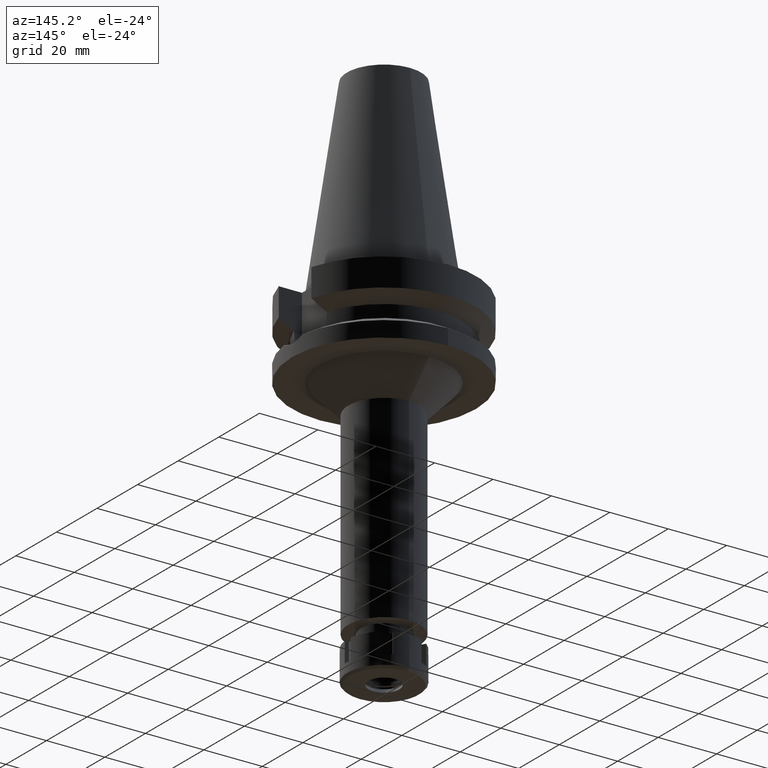
[diagram: clean part render]
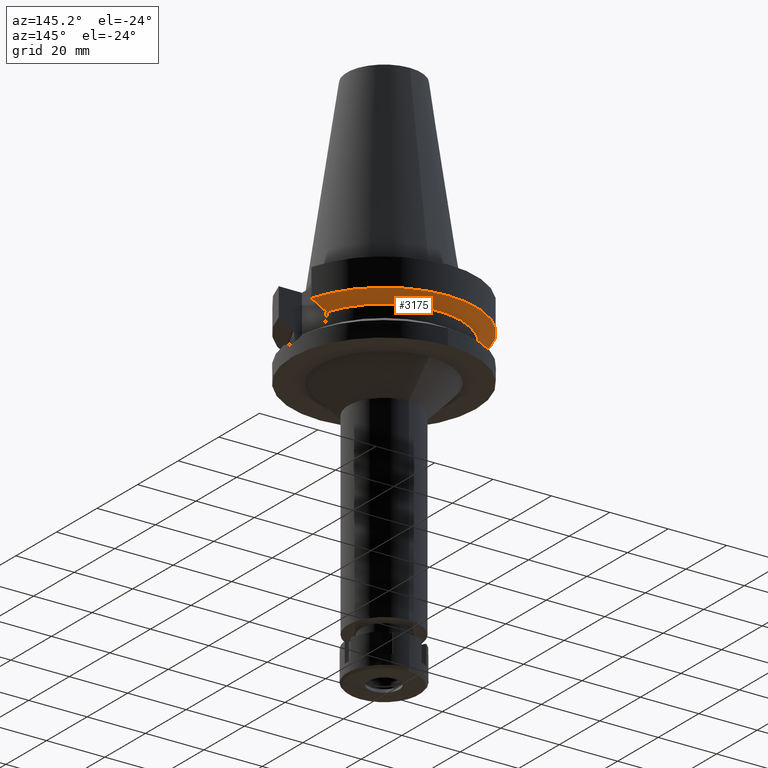
[diagram: same view with one face highlighted and labeled with its STEP entity id]
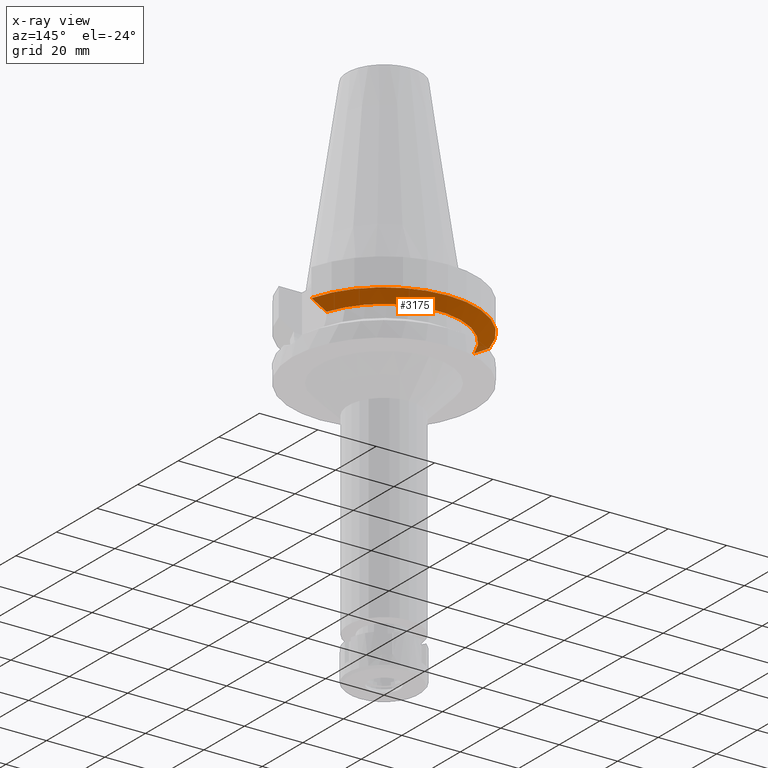
[diagram: x-ray of the same camera — body ghosted, the highlighted face saturated]
A machine part, auxiliary view. The second image highlights one B-rep face of the part: STEP entity #3175.
The next image is the same camera in x-ray: the body ghosted, the highlighted face saturated — about 2% of this face is hidden behind the body in this view.
In plain terms, the highlighted conical surface has half-angle 60 deg.
Its self-contained STEP definition (entity closure, byte-faithful):
#168 = CIRCLE ( 'NONE', #1336, 26.50000000000000711 ) ;
#351 = EDGE_CURVE ( 'NONE', #1046, #2796, #1595, .T. ) ;
#494 = DIRECTION ( 'NONE',  ( 0.0000000000000000000, 1.000000000000000000, 0.0000000000000000000 ) ) ;
#606 = EDGE_CURVE ( 'NONE', #1046, #3118, #871, .T. ) ;
#643 = DIRECTION ( 'NONE',  ( 0.0000000000000000000, 1.000000000000000000, 0.0000000000000000000 ) ) ;
#720 = DIRECTION ( 'NONE',  ( -0.9527442516822307583, 0.3037735849057093818, 0.0000000000000000000 ) ) ;
#794 = DIRECTION ( 'NONE',  ( 0.0000000000000000000, 0.0000000000000000000, 1.000000000000000000 ) ) ;
#803 = B_SPLINE_CURVE_WITH_KNOTS ( 'NONE', 3,
 ( #1849, #2118, #3252, #1281 ),
 .UNSPECIFIED., .F., .F.,
 ( 4, 4 ),
 ( 0.0000000000000000000, 1.000000000000000000 ),
 .UNSPECIFIED. ) ;
#814 = AXIS2_PLACEMENT_3D ( 'NONE', #2666, #1559, #643 ) ;
#871 = CIRCLE ( 'NONE', #814, 31.50000000000000000 ) ;
#1046 = VERTEX_POINT ( 'NONE', #1129 ) ;
#1061 = CARTESIAN_POINT ( 'NONE',  ( 25.24772413115000091, 8.049995415987000413, -14.45229202645000122 ) ) ;
#1129 = CARTESIAN_POINT ( 'NONE',  ( 30.45402291371999937, 8.049999277672000630, -11.56551215852000070 ) ) ;
#1227 = AXIS2_PLACEMENT_3D ( 'NONE', #3339, #794, #494 ) ;
#1281 = CARTESIAN_POINT ( 'NONE',  ( -30.45402162745999775, 8.050004143753000108, -11.56546832750999876 ) ) ;
#1329 = EDGE_LOOP ( 'NONE', ( #2116, #3627, #2880, #3137 ) ) ;
#1336 = AXIS2_PLACEMENT_3D ( 'NONE', #2373, #1804, #720 ) ;
#1445 = VERTEX_POINT ( 'NONE', #2951 ) ;
#1529 = EDGE_CURVE ( 'NONE', #1445, #2796, #168, .T. ) ;
#1559 = DIRECTION ( 'NONE',  ( 0.0000000000000000000, 0.0000000000000000000, 1.000000000000000000 ) ) ;
#1595 = B_SPLINE_CURVE_WITH_KNOTS ( 'NONE', 3,
 ( #3271, #2450, #3625, #1061 ),
 .UNSPECIFIED., .F., .F.,
 ( 4, 4 ),
 ( 0.0000000000000000000, 1.000000000000000000 ),
 .UNSPECIFIED. ) ;
#1619 = FACE_OUTER_BOUND ( 'NONE', #1329, .T. ) ;
#1804 = DIRECTION ( 'NONE',  ( 0.0000000000000000000, 0.0000000000000000000, -1.000000000000000000 ) ) ;
#1849 = CARTESIAN_POINT ( 'NONE',  ( -25.24772216385000334, 8.050001586159000411, -14.45224487896000021 ) ) ;
#2116 = ORIENTED_EDGE ( 'NONE', *, *, #606, .F. ) ;
#2118 = CARTESIAN_POINT ( 'NONE',  ( -26.83758147694664231, 8.050003175741089478, -13.57772735580513057 ) ) ;
#2373 = CARTESIAN_POINT ( 'NONE',  ( 0.0000000000000000000, 1.065333950388000029E-14, -14.45225699861000024 ) ) ;
#2450 = CARTESIAN_POINT ( 'NONE',  ( 28.57292329637930450, 8.049998556282265127, -12.61549605208923985 ) ) ;
#2474 = EDGE_CURVE ( 'NONE', #1445, #3118, #803, .T. ) ;
#2503 = CARTESIAN_POINT ( 'NONE',  ( 25.24772413115000091, 8.049995415987000413, -14.45229202645000122 ) ) ;
#2666 = CARTESIAN_POINT ( 'NONE',  ( 0.0000000000000000000, 1.065333950388000029E-14, -11.56550565266999975 ) ) ;
#2795 = CONICAL_SURFACE ( 'NONE', #1227, 29.00000000000000000, 1.047197551196400456 ) ;
#2796 = VERTEX_POINT ( 'NONE', #2503 ) ;
#2880 = ORIENTED_EDGE ( 'NONE', *, *, #1529, .F. ) ;
#2951 = CARTESIAN_POINT ( 'NONE',  ( -25.24772216385000334, 8.050001586159000411, -14.45224487896000021 ) ) ;
#3118 = VERTEX_POINT ( 'NONE', #3198 ) ;
#3137 = ORIENTED_EDGE ( 'NONE', *, *, #2474, .T. ) ;
#3175 = ADVANCED_FACE ( 'NONE', ( #1619 ), #2795, .T. ) ;
#3198 = CARTESIAN_POINT ( 'NONE',  ( -30.45402162745999775, 8.050004143753000108, -11.56546832750999876 ) ) ;
#3252 = CARTESIAN_POINT ( 'NONE',  ( -28.57295870794844106, 8.050008282470786369, -12.61547480669672083 ) ) ;
#3271 = CARTESIAN_POINT ( 'NONE',  ( 30.45402291371999937, 8.049999277672000630, -11.56551215852000070 ) ) ;
#3339 = CARTESIAN_POINT ( 'NONE',  ( 0.0000000000000000000, 1.065333950388000029E-14, -13.00888132564000088 ) ) ;
#3625 = CARTESIAN_POINT ( 'NONE',  ( 26.83754616629163436, 8.049990821823199028, -13.57774887757036808 ) ) ;
#3627 = ORIENTED_EDGE ( 'NONE', *, *, #351, .T. ) ;